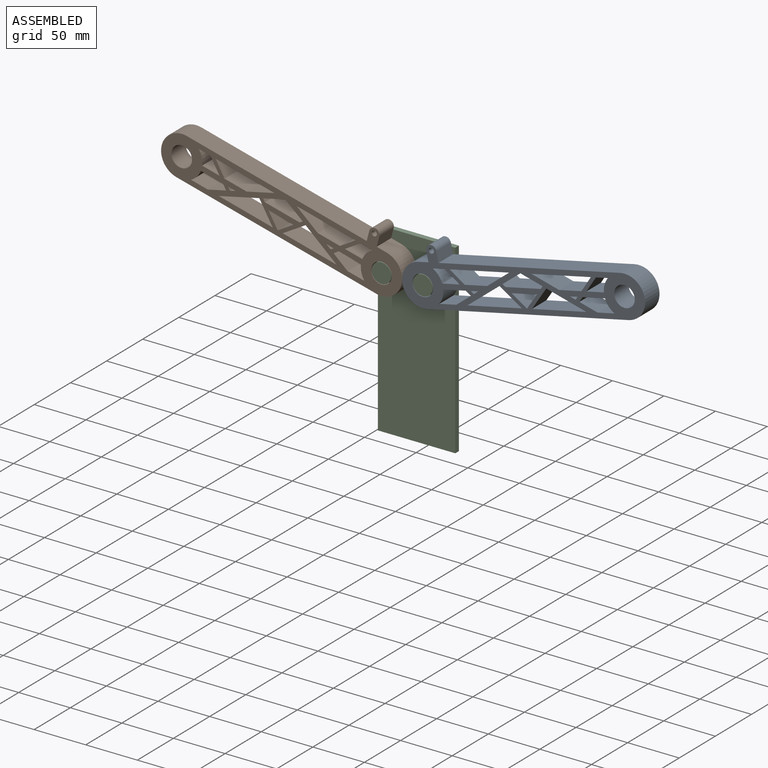
[diagram: assembled view]
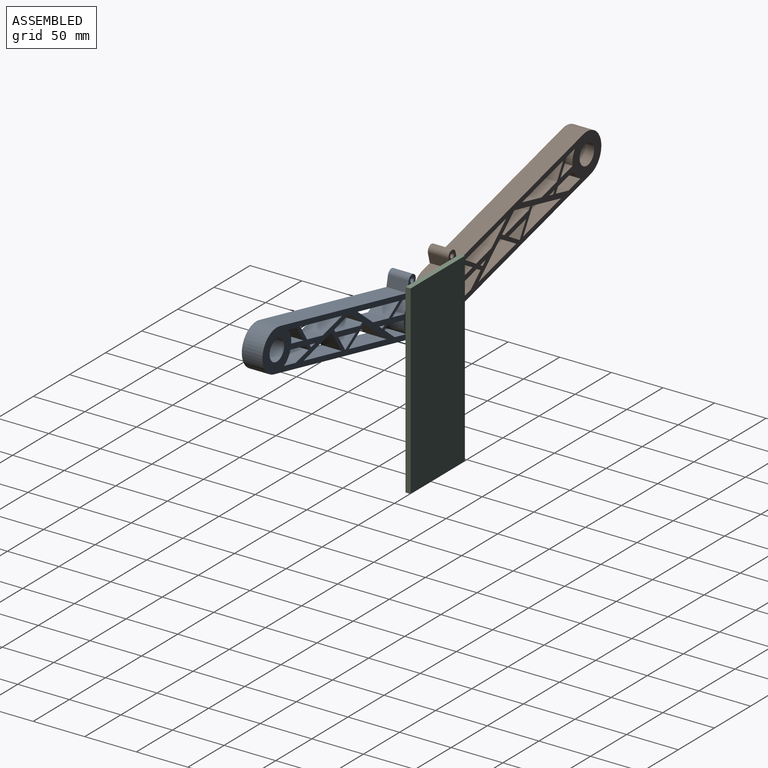
[diagram: assembled view, second angle]
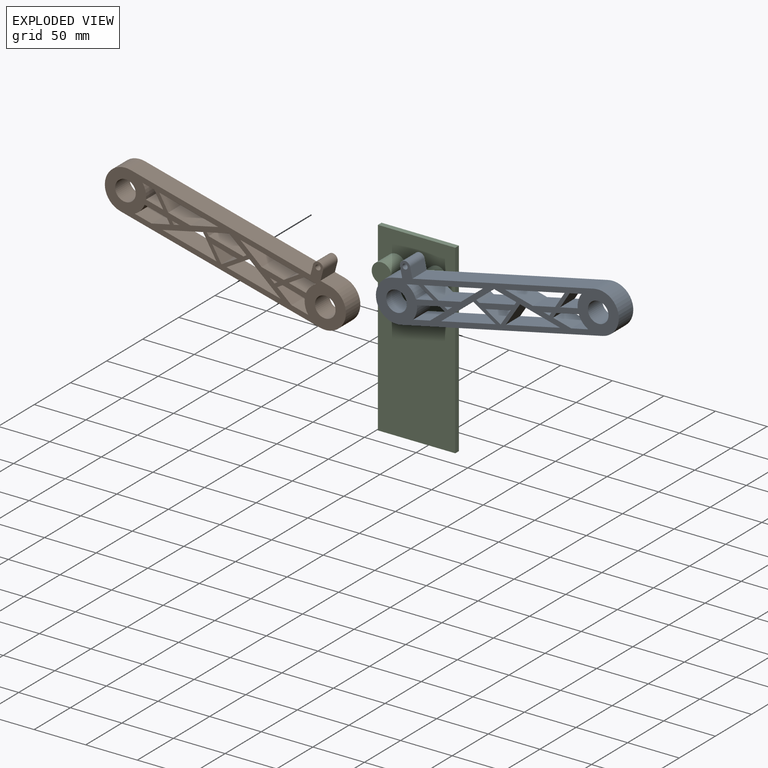
[diagram: exploded view]
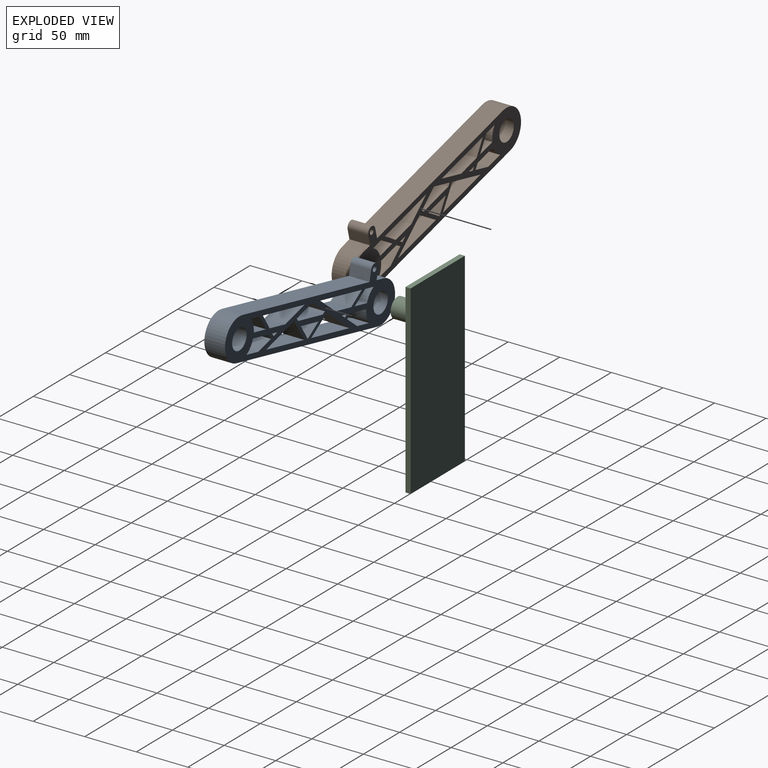
[diagram: exploded view, second angle]
ASSEMBLY  parts=3 mates=2
PART A: 59 faces, bbox 240x20x55 mm
  f0: plane 20x12.5mm, normal (0.72,0,0.7), area 349.1mm2, adj f1,f56,f57,f58
  f1: plane 58.97x20mm, normal (0,0,-1), area 1179.5mm2, adj f0,f2,f57,f58
  f2: plane 24.57x20mm, normal (-0.45,0,0.89), area 551.4mm2, adj f1,f56,f57,f58
  f3: plane 20x5.03mm, normal (-0.45,0,0.89), area 112.8mm2, adj f4,f41,f57,f58
  f4: plane 20x2.56mm, normal (0.72,0,0.7), area 71.4mm2, adj f3,f41,f57,f58
  f5: plane 20x5.03mm, normal (0.45,0,0.89), area 112.8mm2, adj f6,f42,f57,f58
  f6: plane 20x7.52mm, normal (0,0,-1), area 150.4mm2, adj f5,f42,f57,f58
  f7: plane 20x19.88mm, normal (0.45,0,-0.89), area 446.2mm2, adj f8,f43,f57,f58
  f8: plane 20x19.88mm, normal (-0.45,0,-0.89), area 446.2mm2, adj f7,f9,f57,f58
  f9: plane 20x2.38mm, normal (-0.71,0,0.71), area 67.4mm2, adj f8,f10,f57,f58
  f10: plane 35x20mm, normal (0,0,1), area 700mm2, adj f9,f43,f57,f58
  f11: plane 24.57x20mm, normal (0.45,0,0.89), area 551.4mm2, adj f12,f44,f57,f58
  f12: plane 58.97x20mm, normal (0,0,-1), area 1179.5mm2, adj f11,f13,f57,f58
  f13: plane 20x12.5mm, normal (-0.72,0,0.7), area 349.1mm2, adj f12,f44,f57,f58
  f14: plane 53.97x20mm, normal (0,0,1), area 1079.5mm2, adj f15,f45,f57,f58
  f15: plane 35.77x20mm, normal (0.45,0,-0.89), area 802.7mm2, adj f14,f45,f57,f58
  f16: plane 20x12.5mm, normal (-0.71,0,0.71), area 353.6mm2, adj f17,f46,f57,f58
  f17: plane 20x12.5mm, normal (0.71,0,0.71), area 353.6mm2, adj f16,f46,f57,f58
  f18: plane 53.97x20mm, normal (0,0,1), area 1079.5mm2, adj f19,f47,f57,f58
  f19: plane 20x18.2mm, normal (0.71,0,-0.71), area 514.7mm2, adj f18,f47,f57,f58
  f20: plane 20x11.77mm, normal (0,0,-1), area 235.4mm2, adj f21,f49,f57,f58
  f21: cylinder r=20mm len=20mm, axis (0,1,0), area 289.1mm2, adj f20,f22,f57,f58
  f22: plane 20x17.34mm, normal (0,0,1), area 346.7mm2, adj f21,f49,f57,f58
  f23: cylinder r=20mm len=20mm, axis (0,1,0), area 289.1mm2, adj f24,f50,f57,f58
  f24: plane 20x16.77mm, normal (0,0,1), area 335.4mm2, adj f23,f25,f57,f58
  f25: plane 20x16.2mm, normal (0.45,0,0.89), area 363.5mm2, adj f24,f26,f57,f58
  f26: plane 20x4.26mm, normal (0.72,0,-0.7), area 118.9mm2, adj f25,f50,f57,f58
  f27: cylinder r=20mm len=20mm, axis (0,1,0), area 289.1mm2, adj f28,f51,f57,f58
  f28: plane 20x11.77mm, normal (0,0,-1), area 235.4mm2, adj f27,f29,f57,f58
  f29: plane 20x12.5mm, normal (-0.72,0,-0.7), area 349.1mm2, adj f28,f51,f57,f58
  f30: plane 20x16.77mm, normal (0,0,1), area 335.4mm2, adj f31,f53,f57,f58
  f31: cylinder r=20mm len=20mm, axis (0,1,0), area 289.1mm2, adj f30,f32,f57,f58
  f32: plane 22.21x20mm, normal (0,0,-1), area 444.2mm2, adj f31,f33,f57,f58
  f33: plane 20x4.26mm, normal (-0.72,0,-0.7), area 118.9mm2, adj f32,f53,f57,f58
  f34: plane 20x10mm, normal (-1,0,0), area 200mm2, adj f35,f55,f57,f58
  f35: plane 20x10mm, normal (0,0,1), area 200mm2, adj f34,f36,f57,f58
  f36: cylinder r=20mm len=40mm, axis (0,1,0), area 1256.6mm2, adj f35,f37,f57,f58
  f37: plane 200x20mm, normal (0,0,-1), area 4000mm2, adj f36,f38,f57,f58
  f38: cylinder r=20mm len=40mm, axis (0,1,0), area 1256.6mm2, adj f37,f39,f57,f58
  f39: plane 180x20mm, normal (0,0,1), area 3600mm2, adj f38,f40,f57,f58
  f40: plane 20x10mm, normal (1,0,0), area 200mm2, adj f39,f55,f57,f58
  f41: plane 20x7.52mm, normal (0,0,-1), area 150.4mm2, adj f3,f4,f57,f58
  f42: plane 20x2.56mm, normal (-0.72,0,0.7), area 71.4mm2, adj f5,f6,f57,f58
  f43: plane 20x2.38mm, normal (0.71,0,0.71), area 67.4mm2, adj f7,f10,f57,f58
  f44: plane 22.22x20mm, normal (0,0,1), area 444.4mm2, adj f11,f13,f57,f58
  f45: plane 20x18.2mm, normal (-0.71,0,-0.71), area 514.7mm2, adj f14,f15,f57,f58
  f46: plane 25x20mm, normal (0,0,-1), area 500mm2, adj f16,f17,f57,f58
  f47: plane 35.77x20mm, normal (-0.45,0,-0.89), area 802.7mm2, adj f18,f19,f57,f58
  f48: cylinder r=10mm len=20mm, axis (0,1,0), area 1256.6mm2, adj f57,f58
  f49: plane 20x12.5mm, normal (0.72,0,-0.7), area 349.1mm2, adj f20,f22,f57,f58
  f50: plane 22.21x20mm, normal (0,0,-1), area 444.2mm2, adj f23,f26,f57,f58
  f51: plane 20x17.34mm, normal (0,0,1), area 346.7mm2, adj f27,f29,f57,f58
  f52: cylinder r=10mm len=20mm, axis (0,1,0), area 1256.6mm2, adj f57,f58
  f53: plane 20x16.2mm, normal (-0.45,0,0.89), area 363.5mm2, adj f30,f33,f57,f58
  f54: cylinder r=2.5mm len=20mm, axis (0,1,0), area 314.2mm2, adj f57,f58
  f55: cylinder r=5mm len=20mm, axis (0,1,0), area 314.2mm2, adj f34,f40,f57,f58
  f56: plane 22.22x20mm, normal (0,0,1), area 444.4mm2, adj f0,f2,f57,f58
  f57: plane 240x55mm, normal (0,-1,0), area 5379.8mm2, adj f0,f1,f2,f3,f4,f5,f6,f7
  f58: plane 240x55mm, normal (0,1,0), area 5379.8mm2, adj f0,f1,f2,f3,f4,f5,f6,f7
PART B: 59 faces, bbox 240x20x55 mm
  f0: plane 20x12.5mm, normal (0.72,0,0.7), area 349.1mm2, adj f1,f56,f57,f58
  f1: plane 58.97x20mm, normal (0,0,-1), area 1179.5mm2, adj f0,f2,f57,f58
  f2: plane 24.57x20mm, normal (-0.45,0,0.89), area 551.4mm2, adj f1,f56,f57,f58
  f3: plane 20x5.03mm, normal (-0.45,0,0.89), area 112.8mm2, adj f4,f41,f57,f58
  f4: plane 20x2.56mm, normal (0.72,0,0.7), area 71.4mm2, adj f3,f41,f57,f58
  f5: plane 20x5.03mm, normal (0.45,0,0.89), area 112.8mm2, adj f6,f42,f57,f58
  f6: plane 20x7.52mm, normal (0,0,-1), area 150.4mm2, adj f5,f42,f57,f58
  f7: plane 20x19.88mm, normal (0.45,0,-0.89), area 446.2mm2, adj f8,f43,f57,f58
  f8: plane 20x19.88mm, normal (-0.45,0,-0.89), area 446.2mm2, adj f7,f9,f57,f58
  f9: plane 20x2.38mm, normal (-0.71,0,0.71), area 67.4mm2, adj f8,f10,f57,f58
  f10: plane 35x20mm, normal (0,0,1), area 700mm2, adj f9,f43,f57,f58
  f11: plane 24.57x20mm, normal (0.45,0,0.89), area 551.4mm2, adj f12,f44,f57,f58
  f12: plane 58.97x20mm, normal (0,0,-1), area 1179.5mm2, adj f11,f13,f57,f58
  f13: plane 20x12.5mm, normal (-0.72,0,0.7), area 349.1mm2, adj f12,f44,f57,f58
  f14: plane 53.97x20mm, normal (0,0,1), area 1079.5mm2, adj f15,f45,f57,f58
  f15: plane 35.77x20mm, normal (0.45,0,-0.89), area 802.7mm2, adj f14,f45,f57,f58
  f16: plane 20x12.5mm, normal (-0.71,0,0.71), area 353.6mm2, adj f17,f46,f57,f58
  f17: plane 20x12.5mm, normal (0.71,0,0.71), area 353.6mm2, adj f16,f46,f57,f58
  f18: plane 53.97x20mm, normal (0,0,1), area 1079.5mm2, adj f19,f47,f57,f58
  f19: plane 20x18.2mm, normal (0.71,0,-0.71), area 514.7mm2, adj f18,f47,f57,f58
  f20: plane 20x11.77mm, normal (0,0,-1), area 235.4mm2, adj f21,f49,f57,f58
  f21: cylinder r=20mm len=20mm, axis (0,1,0), area 289.1mm2, adj f20,f22,f57,f58
  f22: plane 20x17.34mm, normal (0,0,1), area 346.7mm2, adj f21,f49,f57,f58
  f23: cylinder r=20mm len=20mm, axis (0,1,0), area 289.1mm2, adj f24,f50,f57,f58
  f24: plane 20x16.77mm, normal (0,0,1), area 335.4mm2, adj f23,f25,f57,f58
  f25: plane 20x16.2mm, normal (0.45,0,0.89), area 363.5mm2, adj f24,f26,f57,f58
  f26: plane 20x4.26mm, normal (0.72,0,-0.7), area 118.9mm2, adj f25,f50,f57,f58
  f27: cylinder r=20mm len=20mm, axis (0,1,0), area 289.1mm2, adj f28,f51,f57,f58
  f28: plane 20x11.77mm, normal (0,0,-1), area 235.4mm2, adj f27,f29,f57,f58
  f29: plane 20x12.5mm, normal (-0.72,0,-0.7), area 349.1mm2, adj f28,f51,f57,f58
  f30: plane 20x16.77mm, normal (0,0,1), area 335.4mm2, adj f31,f53,f57,f58
  f31: cylinder r=20mm len=20mm, axis (0,1,0), area 289.1mm2, adj f30,f32,f57,f58
  f32: plane 22.21x20mm, normal (0,0,-1), area 444.2mm2, adj f31,f33,f57,f58
  f33: plane 20x4.26mm, normal (-0.72,0,-0.7), area 118.9mm2, adj f32,f53,f57,f58
  f34: plane 20x10mm, normal (-1,0,0), area 200mm2, adj f35,f55,f57,f58
  f35: plane 180x20mm, normal (0,0,1), area 3600mm2, adj f34,f36,f57,f58
  f36: cylinder r=20mm len=40mm, axis (0,1,0), area 1256.6mm2, adj f35,f37,f57,f58
  f37: plane 200x20mm, normal (0,0,-1), area 4000mm2, adj f36,f38,f57,f58
  f38: cylinder r=20mm len=40mm, axis (0,1,0), area 1256.6mm2, adj f37,f39,f57,f58
  f39: plane 20x10mm, normal (0,0,1), area 200mm2, adj f38,f40,f57,f58
  f40: plane 20x10mm, normal (1,0,0), area 200mm2, adj f39,f55,f57,f58
  f41: plane 20x7.52mm, normal (0,0,-1), area 150.4mm2, adj f3,f4,f57,f58
  f42: plane 20x2.56mm, normal (-0.72,0,0.7), area 71.4mm2, adj f5,f6,f57,f58
  f43: plane 20x2.38mm, normal (0.71,0,0.71), area 67.4mm2, adj f7,f10,f57,f58
  f44: plane 22.22x20mm, normal (0,0,1), area 444.4mm2, adj f11,f13,f57,f58
  f45: plane 20x18.2mm, normal (-0.71,0,-0.71), area 514.7mm2, adj f14,f15,f57,f58
  f46: plane 25x20mm, normal (0,0,-1), area 500mm2, adj f16,f17,f57,f58
  f47: plane 35.77x20mm, normal (-0.45,0,-0.89), area 802.7mm2, adj f18,f19,f57,f58
  f48: cylinder r=10mm len=20mm, axis (0,1,0), area 1256.6mm2, adj f57,f58
  f49: plane 20x12.5mm, normal (0.72,0,-0.7), area 349.1mm2, adj f20,f22,f57,f58
  f50: plane 22.21x20mm, normal (0,0,-1), area 444.2mm2, adj f23,f26,f57,f58
  f51: plane 20x17.34mm, normal (0,0,1), area 346.7mm2, adj f27,f29,f57,f58
  f52: cylinder r=10mm len=20mm, axis (0,1,0), area 1256.6mm2, adj f57,f58
  f53: plane 20x16.2mm, normal (-0.45,0,0.89), area 363.5mm2, adj f30,f33,f57,f58
  f54: cylinder r=2.5mm len=20mm, axis (0,1,0), area 314.2mm2, adj f57,f58
  f55: cylinder r=5mm len=20mm, axis (0,1,0), area 314.2mm2, adj f34,f40,f57,f58
  f56: plane 22.22x20mm, normal (0,0,1), area 444.4mm2, adj f0,f2,f57,f58
  f57: plane 240x55mm, normal (0,-1,0), area 5379.8mm2, adj f0,f1,f2,f3,f4,f5,f6,f7
  f58: plane 240x55mm, normal (0,1,0), area 5379.8mm2, adj f0,f1,f2,f3,f4,f5,f6,f7
PART C: 10 faces, bbox 75x25x180 mm
  f0: plane 75x5mm, normal (0,0,-1), area 375mm2, adj f1,f3,f4,f5
  f1: plane 180x5mm, normal (1,0,0), area 900mm2, adj f0,f2,f4,f5
  f2: plane 75x5mm, normal (0,0,1), area 375mm2, adj f1,f3,f4,f5
  f3: plane 180x5mm, normal (-1,0,0), area 900mm2, adj f0,f2,f4,f5
  f4: plane 180x75mm, normal (0,-1,0), area 12932.9mm2, adj f0,f1,f2,f3,f6,f8
  f5: plane 180x75mm, normal (0,1,0), area 13500mm2, adj f0,f1,f2,f3
  f6: cylinder r=9.5mm len=20mm, axis (0,1,0), area 1193.8mm2, adj f4,f7
  f7: plane 19x19mm, normal (0,-1,0), area 283.5mm2, adj f6
  f8: cylinder r=9.5mm len=20mm, axis (0,1,0), area 1193.8mm2, adj f4,f9
  f9: plane 19x19mm, normal (0,-1,0), area 283.5mm2, adj f8
PLACE A rot(axis=(0,-1,0),12.3deg) t=(20.41,7.24,59.7)mm
PLACE B rot(axis=(0,1,0),14.6deg) t=(-213.17,7.24,109.98)mm
PLACE C t=(0.41,12.24,-0.3)mm fixed
MATE revolute B.f48 <-> C.f8  axis (0,1,0) through (-19.59,7.24,59.7)mm
MATE revolute A.f36 <-> C.f6  axis (0,1,0) through (20.41,7.24,59.7)mm
